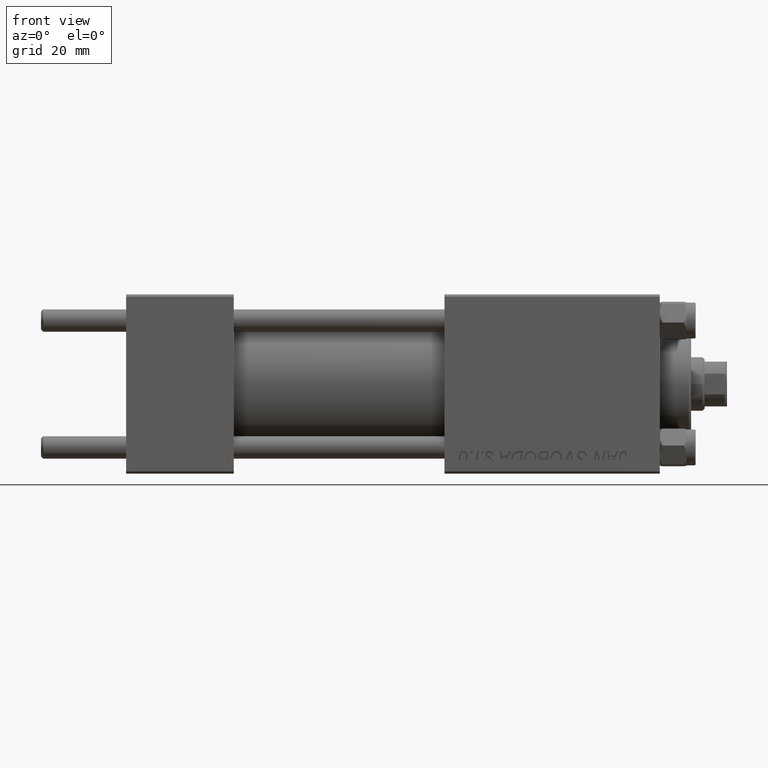
[diagram: clean part render]
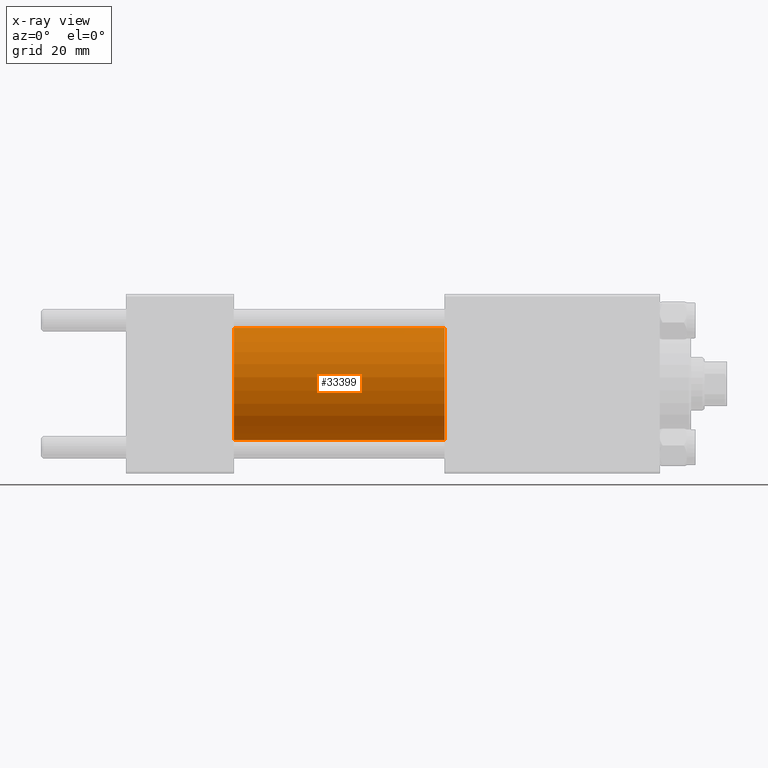
[diagram: x-ray — body ghosted, one internal face saturated and labeled with its STEP entity id]
A machine part, front view, then the same camera in x-ray: the body is ghosted and one INTERNAL B-rep face — a face not visible from any outside direction — is saturated and labeled: STEP entity #33399.
In plain terms, the highlighted cylindrical surface (partial cylindrical patch) has radius 12.5 mm, axis along (-1, -0, -0).
Its self-contained STEP definition (entity closure, byte-faithful):
#783 = LINE ( 'NONE', #47498, #995 ) ;
#995 = VECTOR ( 'NONE', #42975, 1000.000000000000000 ) ;
#1139 = FACE_OUTER_BOUND ( 'NONE', #10143, .T. ) ;
#2266 = DIRECTION ( 'NONE',  ( 1.000000000000000000, 0.000000000000000000, 0.000000000000000000 ) ) ;
#4850 = VERTEX_POINT ( 'NONE', #8421 ) ;
#5088 = EDGE_CURVE ( 'NONE', #30436, #41943, #783, .T. ) ;
#5700 = AXIS2_PLACEMENT_3D ( 'NONE', #33337, #2266, #29035 ) ;
#8421 = CARTESIAN_POINT ( 'NONE',  ( 71.00000000000001421, 1.530808498934191127E-15, -12.49999999999999645 ) ) ;
#10143 = EDGE_LOOP ( 'NONE', ( #49628, #43454, #16538, #20354 ) ) ;
#14222 = AXIS2_PLACEMENT_3D ( 'NONE', #16037, #20319, #28150 ) ;
#15091 = DIRECTION ( 'NONE',  ( 0.000000000000000000, 0.000000000000000000, -1.000000000000000000 ) ) ;
#15532 = AXIS2_PLACEMENT_3D ( 'NONE', #35050, #35297, #15091 ) ;
#16037 = CARTESIAN_POINT ( 'NONE',  ( 71.00000000000001421, 0.000000000000000000, 0.000000000000000000 ) ) ;
#16538 = ORIENTED_EDGE ( 'NONE', *, *, #37457, .F. ) ;
#20200 = CARTESIAN_POINT ( 'NONE',  ( 24.00000000000000000, 0.000000000000000000, 12.49999999999999645 ) ) ;
#20319 = DIRECTION ( 'NONE',  ( -1.000000000000000000, -0.000000000000000000, -0.000000000000000000 ) ) ;
#20354 = ORIENTED_EDGE ( 'NONE', *, *, #5088, .F. ) ;
#20812 = CYLINDRICAL_SURFACE ( 'NONE', #14222, 12.49999999999999645 ) ;
#21682 = CARTESIAN_POINT ( 'NONE',  ( 24.00000000000000000, 1.530808498934191127E-15, -12.49999999999999645 ) ) ;
#24858 = LINE ( 'NONE', #47834, #34115 ) ;
#28150 = DIRECTION ( 'NONE',  ( 0.000000000000000000, 0.000000000000000000, 1.000000000000000000 ) ) ;
#29035 = DIRECTION ( 'NONE',  ( 0.000000000000000000, 0.000000000000000000, -1.000000000000000000 ) ) ;
#29643 = DIRECTION ( 'NONE',  ( -1.000000000000000000, -0.000000000000000000, -0.000000000000000000 ) ) ;
#30436 = VERTEX_POINT ( 'NONE', #44578 ) ;
#32875 = VERTEX_POINT ( 'NONE', #21682 ) ;
#33337 = CARTESIAN_POINT ( 'NONE',  ( 24.00000000000000000, 0.000000000000000000, 0.000000000000000000 ) ) ;
#33399 = ADVANCED_FACE ( 'NONE', ( #1139 ), #20812, .F. ) ;
#34115 = VECTOR ( 'NONE', #29643, 1000.000000000000000 ) ;
#35050 = CARTESIAN_POINT ( 'NONE',  ( 71.00000000000001421, 0.000000000000000000, 0.000000000000000000 ) ) ;
#35297 = DIRECTION ( 'NONE',  ( 1.000000000000000000, 0.000000000000000000, 0.000000000000000000 ) ) ;
#37457 = EDGE_CURVE ( 'NONE', #41943, #32875, #44429, .T. ) ;
#40535 = CIRCLE ( 'NONE', #15532, 12.49999999999999645 ) ;
#41943 = VERTEX_POINT ( 'NONE', #20200 ) ;
#42975 = DIRECTION ( 'NONE',  ( -1.000000000000000000, -0.000000000000000000, -0.000000000000000000 ) ) ;
#43454 = ORIENTED_EDGE ( 'NONE', *, *, #47509, .T. ) ;
#44429 = CIRCLE ( 'NONE', #5700, 12.49999999999999645 ) ;
#44578 = CARTESIAN_POINT ( 'NONE',  ( 71.00000000000001421, 0.000000000000000000, 12.49999999999999645 ) ) ;
#45808 = EDGE_CURVE ( 'NONE', #30436, #4850, #40535, .T. ) ;
#47498 = CARTESIAN_POINT ( 'NONE',  ( 71.00000000000001421, 0.000000000000000000, 12.49999999999999645 ) ) ;
#47509 = EDGE_CURVE ( 'NONE', #4850, #32875, #24858, .T. ) ;
#47834 = CARTESIAN_POINT ( 'NONE',  ( 71.00000000000001421, 1.530808498934191127E-15, -12.49999999999999645 ) ) ;
#49628 = ORIENTED_EDGE ( 'NONE', *, *, #45808, .T. ) ;